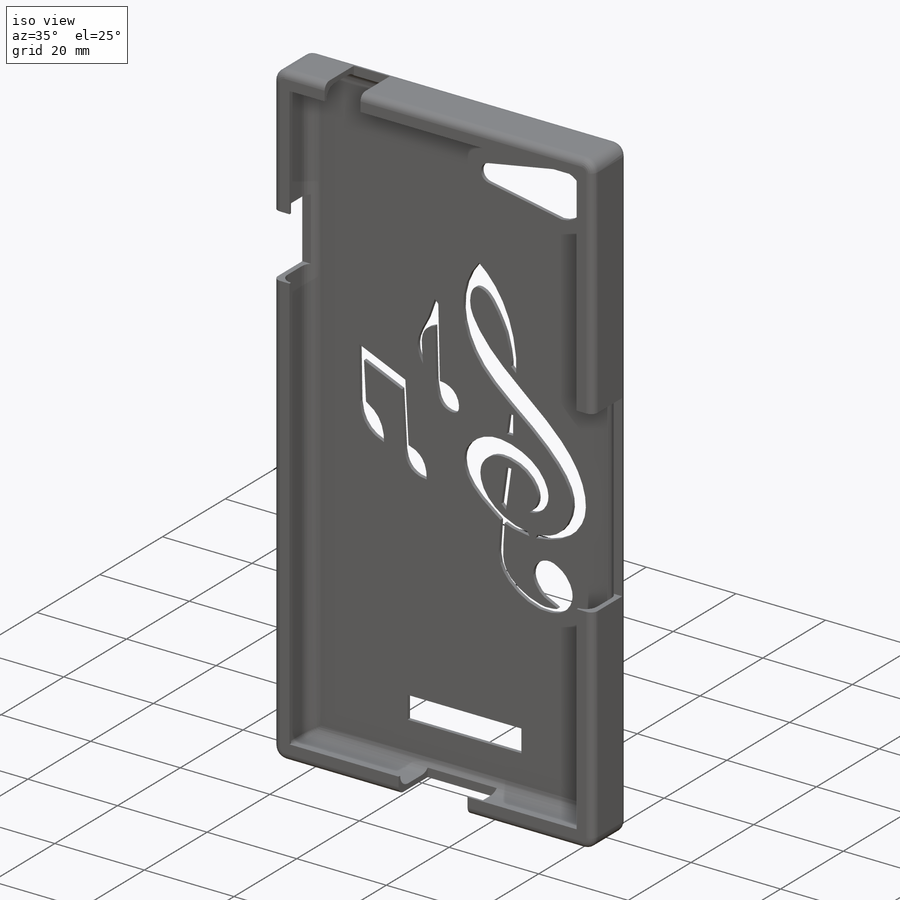
[diagram: iso view]
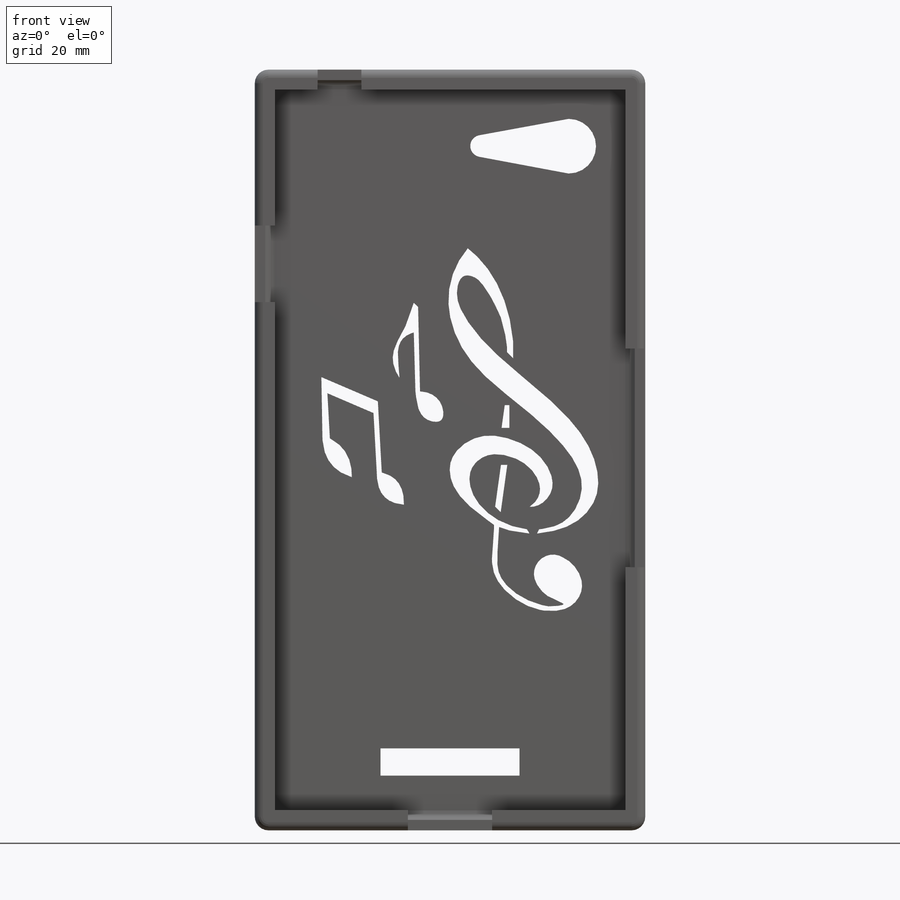
[diagram: front view]
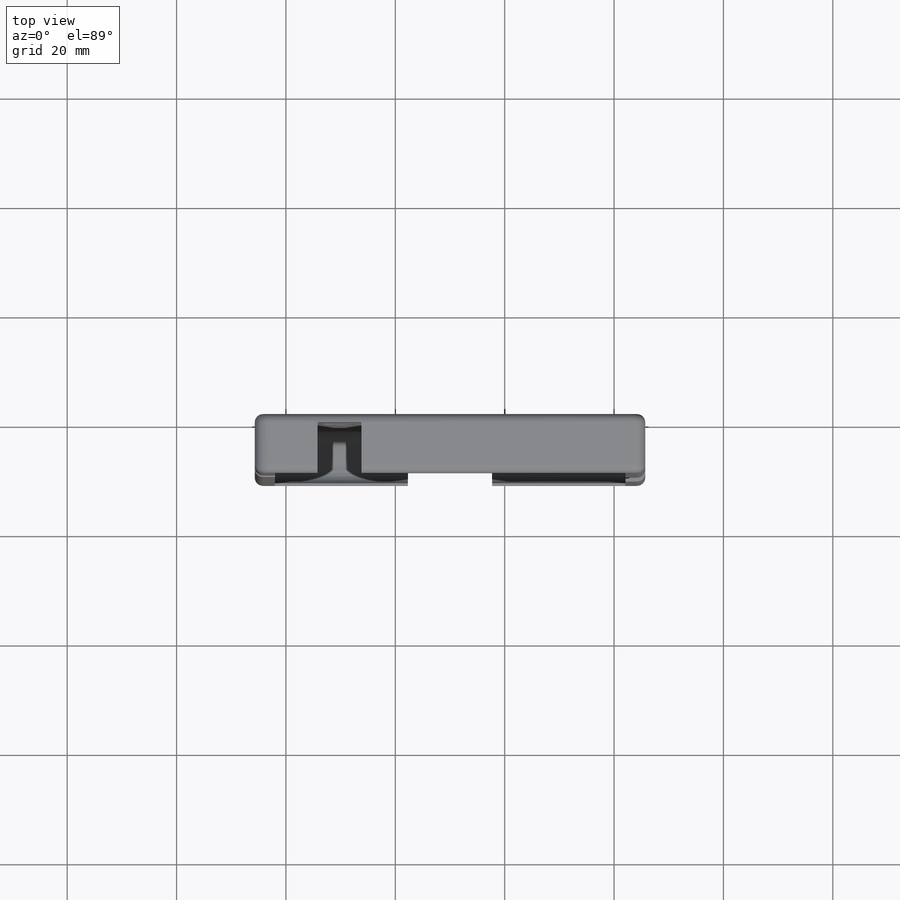
[diagram: top view]
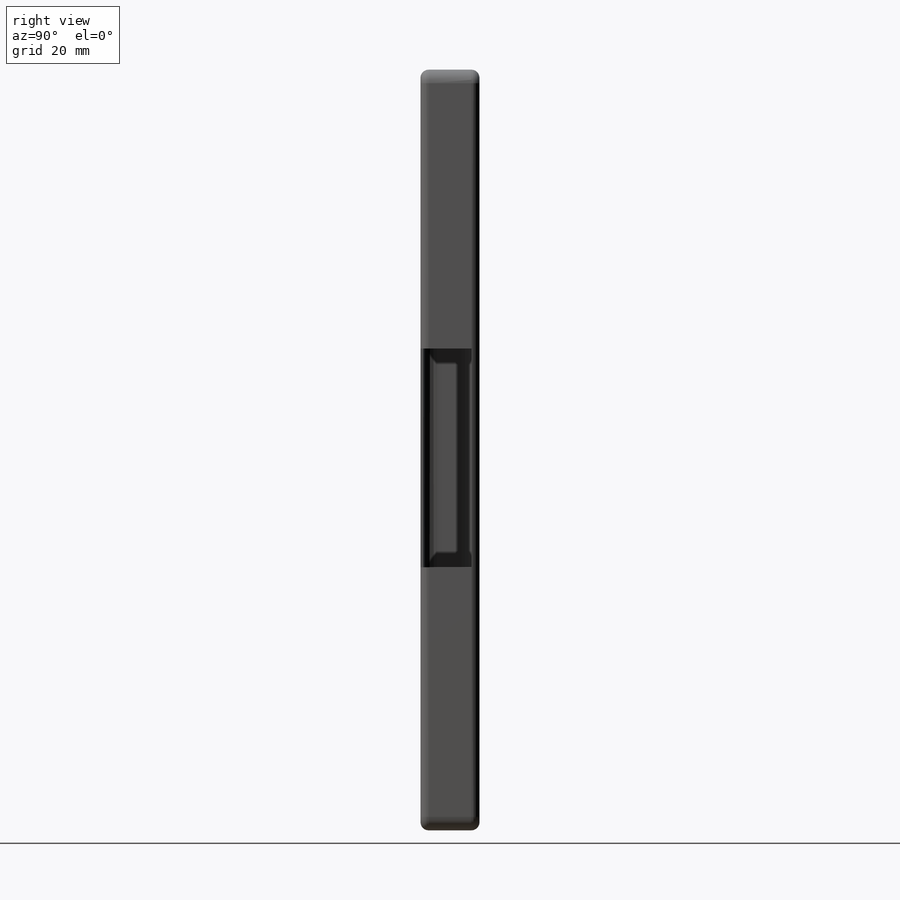
[diagram: right view]
SOLIDWORKS PART (.sldprt)
format: sldprt  version: not decoded by parser v0  size: 623,616 bytes
history: native  units: mm
features: sketch x12, cut_extrude x9, fillet x6, plane x3, extrude x3, material x1 (+9 scaffold rows collapsed)
feature tree (43):
  scaffold x9  (default folders/planes/origin — collapsed)
  material  "Matériau <non spécifié>"
  plane  "Plan de face"
  plane  "Plan de dessus"
  plane  "Plan de droite"
  sketch  "Esquisse1"  dims[D1=71.4mm D2=139.1mm]
  extrude  "Boss.-Extru.1"  Depth=10.3mm
  sketch  "Esquisse2"  dims[c1.D1=~122.387247mm c1.D2=~122.387247mm c2.D1=1.15mm c2.D2=1.15mm c2.D3=1.15mm c2.D4=1.15mm]
  cut_extrude  "Enlèv. mat.-Extru.1"  Depth=9.5mm
  fillet  "Congé1"  Radius=2.5mm
  fillet  "Congé2"  Radius=1.5mm
  sketch  "Esquisse3"
  extrude  "Boss.-Extru.2"  Depth=1mm
  fillet  "Congé3"  Radius=2.5mm
  sketch  "Esquisse4"
  cut_extrude  "Enlèv. mat.-Extru.2"  Depth=1mm
  sketch  "Esquisse5"  dims[c1.D1=~4.18692mm c1.D2=~4.18692mm c1.D3=8.0mm c2.D1=4.5mm c2.D2=15.5mm]
  cut_extrude  "Enlèv. mat.-Extru.3"  Depth=11mm
  sketch  "Esquisse8"  dims[c1.D2=~6.437194mm c1.D3=5.0mm c1.D5=2.0mm c1.D1=14.0mm c2.D2=14.0mm c2.D4=16.0mm]
  cut_extrude  "Enlèv. mat.-Extru.6"  Depth=11mm
  sketch  "Esquisse9"  dims[D1=23.0mm D2=23.0mm D3=10.0mm D4=5.0mm]
  cut_extrude  "Enlèv. mat.-Extru.7"  Depth=11mm
  sketch  "Esquisse10"
  cut_extrude  "Enlèv. mat.-Extru.8"  Depth=10mm
  fillet  "Congé5"  Radius=2.5mm
  fillet  "Congé6"  Radius=1mm
  sketch  "Esquisse11"  dims[D1=5.0mm D2=5.0mm]
  cut_extrude  "Enlèv. mat.-Extru.9"  Depth=10mm
  sketch  "Esquisse16"
  extrude  "Boss.-Extru.4"  Depth=0.5mm
  fillet  "Congé8"  Radius=1.5mm
  sketch  "Esquisse17"  dims[D1=28.5mm D2=14.0mm]
  cut_extrude  "Enlèv. mat.-Extru.10"  Depth=10mm
  sketch  "Esquisse18"  dims[D1=40.0mm D2=51.0mm]
  cut_extrude  "Enlèv. mat.-Extru.11"  Depth=10mm
decode coverage: 26 of 30 modeling features carry decoded parameters
note: ~ marks probable driven/reference dimensions
note: suppression state not decoded; provenance and decode notes live in map.json
